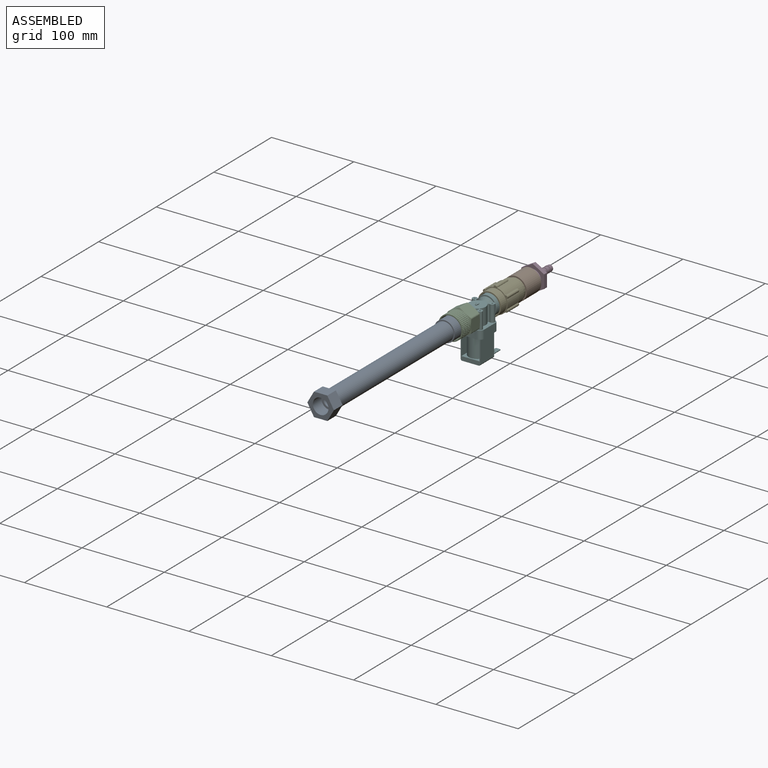
[diagram: assembled view]
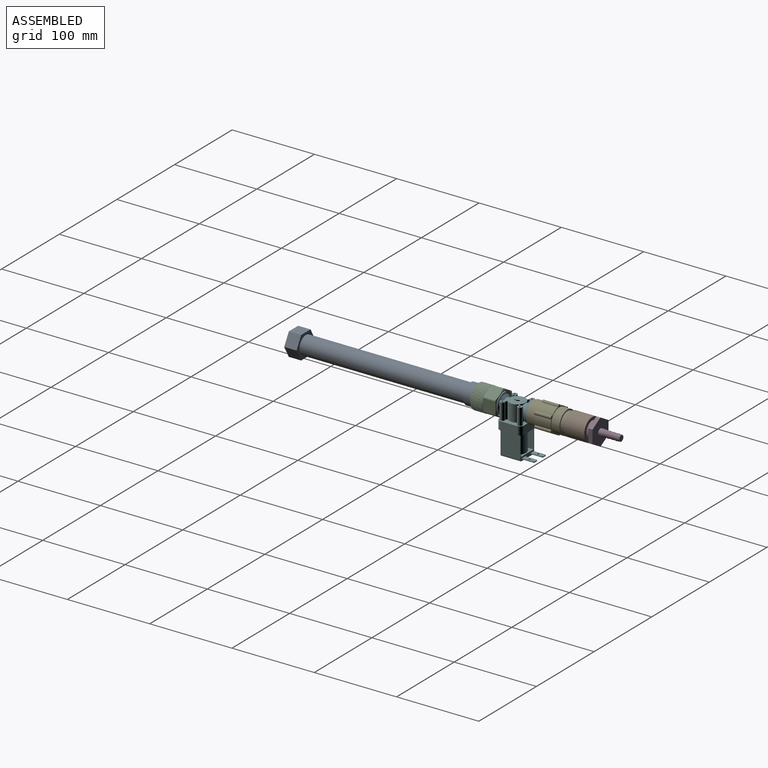
[diagram: assembled view, second angle]
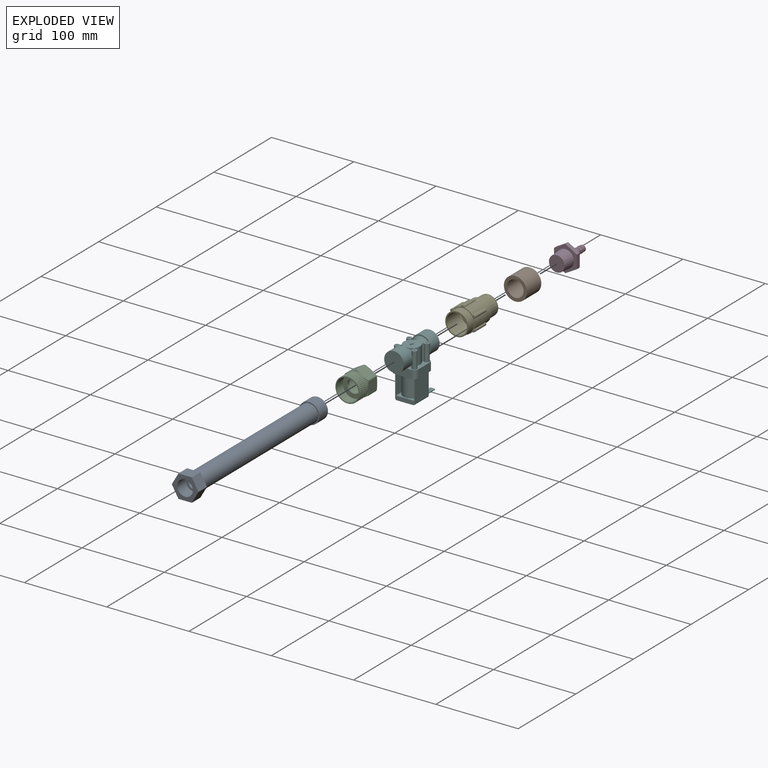
[diagram: exploded view]
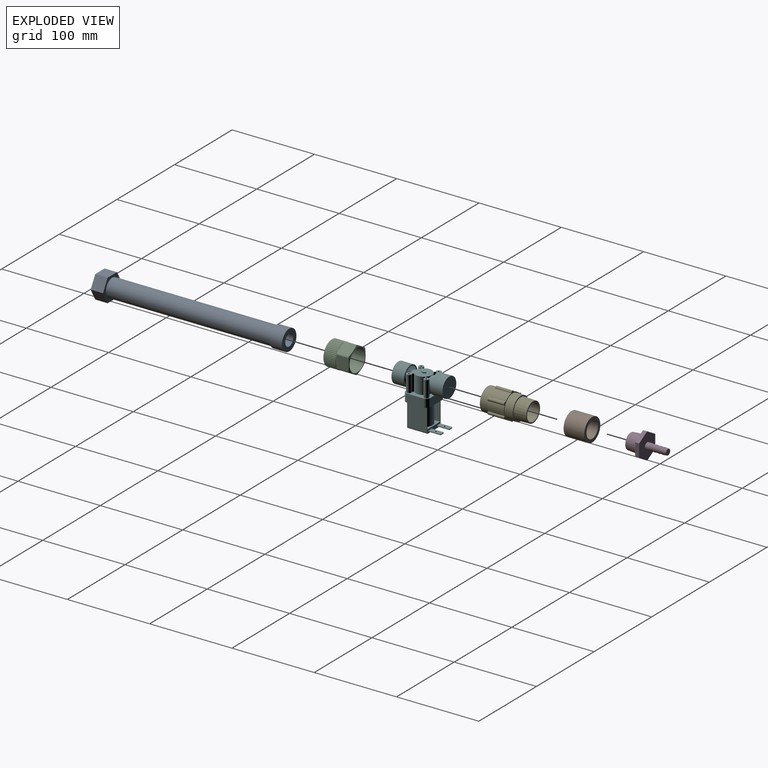
[diagram: exploded view, second angle]
ASSEMBLY  parts=6 mates=5
PART A: 15 faces, bbox 230x32.3x28 mm
  f0: plane 19x19mm, normal (-1,0,0), area 129.6mm2, adj f1,f12
  f1: cylinder r=7mm len=215mm, axis (-1,0,0), area 9456.2mm2, adj f0,f4
  f2: cylinder r=11mm len=200mm, axis (-1,0,0), area 13823mm2, adj f5,f14
  f3: cylinder r=12.5mm len=25mm, axis (-1,0,0), area 1178.1mm2, adj f4,f5
  f4: plane 25x25mm, normal (1,0,0), area 336.9mm2, adj f1,f3
  f5: plane 25x25mm, normal (-1,0,0), area 110.7mm2, adj f2,f3
  f6: plane 16.17x15mm, normal (0,0,1), area 242.5mm2, adj f7,f11,f13,f14
  f7: plane 15x14mm, normal (0,0.87,0.5), area 242.5mm2, adj f6,f8,f13,f14
  f8: plane 15x14mm, normal (0,0.87,-0.5), area 242.5mm2, adj f7,f9,f13,f14
  f9: plane 16.17x15mm, normal (0,0,-1), area 242.5mm2, adj f8,f10,f13,f14
  f10: plane 15x14mm, normal (0,-0.87,-0.5), area 242.5mm2, adj f9,f11,f13,f14
  f11: plane 15x14mm, normal (0,-0.87,0.5), area 242.5mm2, adj f6,f10,f13,f14
  f12: cylinder r=9.5mm len=19mm, axis (1,0,0), area 895.4mm2, adj f0,f13
  f13: plane 32.33x28mm, normal (-1,0,0), area 395.4mm2, adj f6,f7,f8,f9,f10,f11,f12
  f14: plane 32.33x28mm, normal (1,0,0), area 298.8mm2, adj f2,f6,f7,f8,f9,f10,f11
PART B: 4 faces, bbox 25x28x28 mm
  f0: cylinder r=10mm len=25mm, axis (-1,0,0), area 1570.8mm2, adj f2,f3
  f1: cylinder r=14mm len=28mm, axis (-1,0,0), area 2199.1mm2, adj f2,f3
  f2: plane 28x28mm, normal (1,0,0), area 301.6mm2, adj f0,f1
  f3: plane 28x28mm, normal (-1,0,0), area 301.6mm2, adj f0,f1
PART C: 223 faces, bbox 33x32.9x29.5 mm
  f0: cylinder r=14.5mm len=29mm, axis (-1,0,0), area 316.1mm2, adj f18,f19,f23,f24,f26,f27,f28,f30
  f1: cylinder r=13.5mm len=27mm, axis (1,0,0), area 933.1mm2, adj f18,f21
  f2: plane 15.7x12.5mm, normal (0,0.87,-0.5), area 221.4mm2, adj f10,f11,f16,f17
  f3: plane 15.7x12.5mm, normal (0,0.87,0.5), area 221.4mm2, adj f10,f11,f12,f17
  f4: plane 15.7x14.43mm, normal (0,0,1), area 221.4mm2, adj f10,f12,f13,f17
  f5: plane 15.7x12.5mm, normal (0,-0.87,0.5), area 221.4mm2, adj f10,f13,f14,f17
  f6: plane 15.7x12.5mm, normal (0,-0.87,-0.5), area 221.4mm2, adj f10,f14,f15,f17
  f7: cylinder r=13.5mm len=27mm, axis (1,0,0), area 1442mm2, adj f9,f22
  f8: plane 15.7x14.43mm, normal (0,0,-1), area 221.4mm2, adj f10,f15,f16,f17
  f9: plane 28x28mm, normal (-1,0,0), area 43.2mm2, adj f7,f10
  f10: sphere r=50mm, area 116.5mm2, adj f2,f3,f4,f5,f6,f8,f9,f11
  f11: cylinder r=2mm len=14.61mm, axis (1,0,0), area 30.4mm2, adj f2,f3,f10,f17
  f12: cylinder r=2mm len=14.61mm, axis (1,0,0), area 30.4mm2, adj f3,f4,f10,f17
  f13: cylinder r=2mm len=14.61mm, axis (1,0,0), area 30.4mm2, adj f4,f5,f10,f17
  f14: cylinder r=2mm len=14.61mm, axis (1,0,0), area 30.4mm2, adj f5,f6,f10,f17
  f15: cylinder r=2mm len=14.61mm, axis (1,0,0), area 30.4mm2, adj f6,f8,f10,f17
  f16: cylinder r=2mm len=14.61mm, axis (1,0,0), area 30.4mm2, adj f2,f8,f10,f17
  f17: sphere r=50mm, area 116.5mm2, adj f2,f3,f4,f5,f6,f8,f11,f12
  f18: plane 29.47x29.46mm, normal (1,0,0), area 102.6mm2, adj f0,f1,f23,f24,f25,f27,f28,f29
  f19: plane 29x29mm, normal (-1,0,0), area 44.8mm2, adj f0,f17
  f20: cylinder r=8mm len=16mm, axis (-1,0,0), area 150.8mm2, adj f21,f22
  f21: plane 27x27mm, normal (1,0,0), area 371.5mm2, adj f1,f20
  f22: plane 27x27mm, normal (-1,0,0), area 371.5mm2, adj f7,f20
  f23: plane 14x0.25mm, normal (0,0.71,0.71), area 4.9mm2, adj f0,f18,f25,f26
  f24: plane 14x0.25mm, normal (0,0.71,-0.71), area 4.9mm2, adj f0,f18,f25,f26
  f25: plane 14x1mm, normal (0,1,0), area 14mm2, adj f18,f23,f24,f26
  f26: plane 1.5x0.25mm, normal (-1,0,0), area 0.3mm2, adj f0,f23,f24,f25
  f27: plane 14x0.28mm, normal (0,0.79,0.61), area 4.9mm2, adj f0,f18,f29,f30
  f28: plane 14x0.28mm, normal (0,0.61,-0.79), area 4.9mm2, adj f0,f18,f29,f30
  f29: plane 14x0.99mm, normal (0,0.99,-0.13), area 14mm2, adj f18,f27,f28,f30
  f30: plane 1.49x0.4mm, normal (-1,0,0), area 0.3mm2, adj f0,f27,f28,f29
  f31: plane 14x0.3mm, normal (0,0.86,0.51), area 4.9mm2, adj f0,f18,f33,f34
  f32: plane 14x0.3mm, normal (0,0.51,-0.86), area 4.9mm2, adj f0,f18,f33,f34
  f33: plane 14x0.97mm, normal (0,0.97,-0.25), area 14mm2, adj f18,f31,f32,f34
  f34: plane 1.45x0.55mm, normal (-1,0,0), area 0.3mm2, adj f0,f31,f32,f33
  f35: plane 14x0.32mm, normal (0,0.92,0.4), area 4.9mm2, adj f0,f18,f37,f38
  f36: plane 14x0.32mm, normal (0,0.4,-0.92), area 4.9mm2, adj f0,f18,f37,f38
  f37: plane 14x0.93mm, normal (0,0.93,-0.37), area 14mm2, adj f18,f35,f36,f38
  f38: plane 1.39x0.69mm, normal (-1,0,0), area 0.3mm2, adj f0,f35,f36,f37
  f39: plane 14x0.34mm, normal (0,0.96,0.28), area 4.9mm2, adj f0,f18,f41,f42
  f40: plane 14x0.34mm, normal (0,0.28,-0.96), area 4.9mm2, adj f0,f18,f41,f42
  f41: plane 14x0.88mm, normal (0,0.88,-0.48), area 14mm2, adj f18,f39,f40,f42
  f42: plane 1.31x0.82mm, normal (-1,0,0), area 0.3mm2, adj f0,f39,f40,f41
  f43: plane 14x0.35mm, normal (0,0.99,0.16), area 4.9mm2, adj f0,f18,f45,f46
  f44: plane 14x0.35mm, normal (0,0.16,-0.99), area 4.9mm2, adj f0,f18,f45,f46
  f45: plane 14x0.81mm, normal (0,0.81,-0.59), area 14mm2, adj f18,f43,f44,f46
  f46: plane 1.21x0.94mm, normal (-1,0,0), area 0.3mm2, adj f0,f43,f44,f45
  f47: plane 14x0.35mm, normal (0,1,0.03), area 4.9mm2, adj f0,f18,f49,f50
  f48: plane 14x0.35mm, normal (0,0.03,-1), area 4.9mm2, adj f0,f18,f49,f50
  f49: plane 14x0.73mm, normal (0,0.73,-0.68), area 14mm2, adj f18,f47,f48,f50
  f50: plane 1.09x1.04mm, normal (-1,0,0), area 0.3mm2, adj f0,f47,f48,f49
  f51: plane 14x0.35mm, normal (0,1,-0.09), area 4.9mm2, adj f0,f18,f53,f54
  f52: plane 14x0.35mm, normal (0,-0.09,-1), area 4.9mm2, adj f0,f18,f53,f54
  f53: plane 14x0.77mm, normal (0,0.64,-0.77), area 14mm2, adj f18,f51,f52,f54
  f54: plane 1.16x0.99mm, normal (-1,0,0), area 0.3mm2, adj f0,f51,f52,f53
  f55: plane 14x0.35mm, normal (0,0.98,-0.22), area 4.9mm2, adj f0,f18,f57,f58
  f56: plane 14x0.35mm, normal (0,-0.22,-0.98), area 4.9mm2, adj f0,f18,f57,f58
  f57: plane 14x0.84mm, normal (0,0.54,-0.84), area 14mm2, adj f18,f55,f56,f58
  f58: plane 1.27x0.88mm, normal (-1,0,0), area 0.3mm2, adj f0,f55,f56,f57
  f59: plane 14x0.33mm, normal (0,0.94,-0.34), area 4.9mm2, adj f0,f18,f61,f62
  f60: plane 14x0.33mm, normal (0,-0.34,-0.94), area 4.9mm2, adj f0,f18,f61,f62
  f61: plane 14x0.91mm, normal (0,0.43,-0.9), area 14mm2, adj f18,f59,f60,f62
  f62: plane 1.36x0.76mm, normal (-1,0,0), area 0.3mm2, adj f0,f59,f60,f61
  f63: plane 14x0.32mm, normal (0,0.89,-0.45), area 4.9mm2, adj f0,f18,f65,f66
  f64: plane 14x0.32mm, normal (0,-0.45,-0.89), area 4.9mm2, adj f0,f18,f65,f66
  f65: plane 14x0.95mm, normal (0,0.31,-0.95), area 14mm2, adj f18,f63,f64,f66
  f66: plane 1.43x0.62mm, normal (-1,0,0), area 0.3mm2, adj f0,f63,f64,f65
  f67: plane 14x0.29mm, normal (0,0.83,-0.56), area 4.9mm2, adj f0,f18,f69,f70
  f68: plane 14x0.29mm, normal (0,-0.56,-0.83), area 4.9mm2, adj f0,f18,f69,f70
  f69: plane 14x0.98mm, normal (0,0.19,-0.98), area 14mm2, adj f18,f67,f68,f70
  f70: plane 1.47x0.48mm, normal (-1,0,0), area 0.3mm2, adj f0,f67,f68,f69
  f71: plane 14x0.27mm, normal (0,0.75,-0.66), area 4.9mm2, adj f0,f18,f73,f74
  f72: plane 14x0.27mm, normal (0,-0.66,-0.75), area 4.9mm2, adj f0,f18,f73,f74
  f73: plane 14x1mm, normal (0,0.06,-1), area 14mm2, adj f18,f71,f72,f74
  f74: plane 1.5x0.33mm, normal (-1,0,0), area 0.3mm2, adj f0,f71,f72,f73
  f75: plane 14x0.27mm, normal (0,0.66,-0.75), area 4.9mm2, adj f0,f18,f77,f78
  f76: plane 14x0.27mm, normal (0,-0.75,-0.66), area 4.9mm2, adj f0,f18,f77,f78
  f77: plane 14x1mm, normal (0,-0.06,-1), area 14mm2, adj f18,f75,f76,f78
  f78: plane 1.5x0.33mm, normal (-1,0,0), area 0.3mm2, adj f0,f75,f76,f77
  f79: plane 14x0.29mm, normal (0,0.56,-0.83), area 4.9mm2, adj f0,f18,f81,f82
  f80: plane 14x0.29mm, normal (0,-0.83,-0.56), area 4.9mm2, adj f0,f18,f81,f82
  f81: plane 14x0.98mm, normal (0,-0.19,-0.98), area 14mm2, adj f18,f79,f80,f82
  f82: plane 1.47x0.48mm, normal (-1,0,0), area 0.3mm2, adj f0,f79,f80,f81
  f83: plane 14x0.32mm, normal (0,0.45,-0.89), area 4.9mm2, adj f0,f18,f85,f86
  f84: plane 14x0.32mm, normal (0,-0.89,-0.45), area 4.9mm2, adj f0,f18,f85,f86
  f85: plane 14x0.95mm, normal (0,-0.31,-0.95), area 14mm2, adj f18,f83,f84,f86
  f86: plane 1.43x0.62mm, normal (-1,0,0), area 0.3mm2, adj f0,f83,f84,f85
  f87: plane 14x0.33mm, normal (0,0.34,-0.94), area 4.9mm2, adj f0,f18,f89,f90
  f88: plane 14x0.33mm, normal (0,-0.94,-0.34), area 4.9mm2, adj f0,f18,f89,f90
  f89: plane 14x0.91mm, normal (0,-0.43,-0.9), area 14mm2, adj f18,f87,f88,f90
  f90: plane 1.36x0.76mm, normal (-1,0,0), area 0.3mm2, adj f0,f87,f88,f89
  f91: plane 14x0.35mm, normal (0,0.22,-0.98), area 4.9mm2, adj f0,f18,f93,f94
  f92: plane 14x0.35mm, normal (0,-0.98,-0.22), area 4.9mm2, adj f0,f18,f93,f94
  f93: plane 14x0.84mm, normal (0,-0.54,-0.84), area 14mm2, adj f18,f91,f92,f94
  f94: plane 1.27x0.88mm, normal (-1,0,0), area 0.3mm2, adj f0,f91,f92,f93
  f95: plane 14x0.35mm, normal (0,0.09,-1), area 4.9mm2, adj f0,f18,f97,f98
  f96: plane 14x0.35mm, normal (0,-1,-0.09), area 4.9mm2, adj f0,f18,f97,f98
  f97: plane 14x0.77mm, normal (0,-0.64,-0.77), area 14mm2, adj f18,f95,f96,f98
  f98: plane 1.16x0.99mm, normal (-1,0,0), area 0.3mm2, adj f0,f95,f96,f97
  f99: plane 14x0.35mm, normal (0,-0.03,-1), area 4.9mm2, adj f0,f18,f101,f102
  f100: plane 14x0.35mm, normal (0,-1,0.03), area 4.9mm2, adj f0,f18,f101,f102
  f101: plane 14x0.73mm, normal (0,-0.73,-0.68), area 14mm2, adj f18,f99,f100,f102
  f102: plane 1.09x1.04mm, normal (-1,0,0), area 0.3mm2, adj f0,f99,f100,f101
  f103: plane 14x0.35mm, normal (0,-0.16,-0.99), area 4.9mm2, adj f0,f18,f105,f106
  f104: plane 14x0.35mm, normal (0,-0.99,0.16), area 4.9mm2, adj f0,f18,f105,f106
  f105: plane 14x0.81mm, normal (0,-0.81,-0.59), area 14mm2, adj f18,f103,f104,f106
  f106: plane 1.21x0.94mm, normal (-1,0,0), area 0.3mm2, adj f0,f103,f104,f105
  f107: plane 14x0.34mm, normal (0,-0.28,-0.96), area 4.9mm2, adj f0,f18,f109,f110
  f108: plane 14x0.34mm, normal (0,-0.96,0.28), area 4.9mm2, adj f0,f18,f109,f110
  f109: plane 14x0.88mm, normal (0,-0.88,-0.48), area 14mm2, adj f18,f107,f108,f110
  f110: plane 1.31x0.82mm, normal (-1,0,0), area 0.3mm2, adj f0,f107,f108,f109
  f111: plane 14x0.32mm, normal (0,-0.4,-0.92), area 4.9mm2, adj f0,f18,f113,f114
  f112: plane 14x0.32mm, normal (0,-0.92,0.4), area 4.9mm2, adj f0,f18,f113,f114
  f113: plane 14x0.93mm, normal (0,-0.93,-0.37), area 14mm2, adj f18,f111,f112,f114
  f114: plane 1.39x0.69mm, normal (-1,0,0), area 0.3mm2, adj f0,f111,f112,f113
  f115: plane 14x0.3mm, normal (0,-0.51,-0.86), area 4.9mm2, adj f0,f18,f117,f118
  f116: plane 14x0.3mm, normal (0,-0.86,0.51), area 4.9mm2, adj f0,f18,f117,f118
  f117: plane 14x0.97mm, normal (0,-0.97,-0.25), area 14mm2, adj f18,f115,f116,f118
  f118: plane 1.45x0.55mm, normal (-1,0,0), area 0.3mm2, adj f0,f115,f116,f117
  f119: plane 14x0.28mm, normal (0,-0.61,-0.79), area 4.9mm2, adj f0,f18,f121,f122
  f120: plane 14x0.28mm, normal (0,-0.79,0.61), area 4.9mm2, adj f0,f18,f121,f122
  f121: plane 14x0.99mm, normal (0,-0.99,-0.13), area 14mm2, adj f18,f119,f120,f122
  f122: plane 1.49x0.4mm, normal (-1,0,0), area 0.3mm2, adj f0,f119,f120,f121
  f123: plane 14x0.25mm, normal (0,-0.71,-0.71), area 4.9mm2, adj f0,f18,f125,f126
  f124: plane 14x0.25mm, normal (0,-0.71,0.71), area 4.9mm2, adj f0,f18,f125,f126
  f125: plane 14x1mm, normal (0,-1,0), area 14mm2, adj f18,f123,f124,f126
  f126: plane 1.5x0.25mm, normal (-1,0,0), area 0.3mm2, adj f0,f123,f124,f125
  f127: plane 14x0.28mm, normal (0,-0.79,-0.61), area 4.9mm2, adj f0,f18,f129,f130
  f128: plane 14x0.28mm, normal (0,-0.61,0.79), area 4.9mm2, adj f0,f18,f129,f130
  f129: plane 14x0.99mm, normal (0,-0.99,0.13), area 14mm2, adj f18,f127,f128,f130
  f130: plane 1.49x0.4mm, normal (-1,0,0), area 0.3mm2, adj f0,f127,f128,f129
  f131: plane 14x0.3mm, normal (0,-0.86,-0.51), area 4.9mm2, adj f0,f18,f133,f134
  f132: plane 14x0.3mm, normal (0,-0.51,0.86), area 4.9mm2, adj f0,f18,f133,f134
  f133: plane 14x0.97mm, normal (0,-0.97,0.25), area 14mm2, adj f18,f131,f132,f134
  f134: plane 1.45x0.55mm, normal (-1,0,0), area 0.3mm2, adj f0,f131,f132,f133
  f135: plane 14x0.32mm, normal (0,-0.92,-0.4), area 4.9mm2, adj f0,f18,f137,f138
  f136: plane 14x0.32mm, normal (0,-0.4,0.92), area 4.9mm2, adj f0,f18,f137,f138
  f137: plane 14x0.93mm, normal (0,-0.93,0.37), area 14mm2, adj f18,f135,f136,f138
  f138: plane 1.39x0.69mm, normal (-1,0,0), area 0.3mm2, adj f0,f135,f136,f137
  f139: plane 14x0.34mm, normal (0,-0.96,-0.28), area 4.9mm2, adj f0,f18,f141,f142
  f140: plane 14x0.34mm, normal (0,-0.28,0.96), area 4.9mm2, adj f0,f18,f141,f142
  f141: plane 14x0.88mm, normal (0,-0.88,0.48), area 14mm2, adj f18,f139,f140,f142
  f142: plane 1.31x0.82mm, normal (-1,0,0), area 0.3mm2, adj f0,f139,f140,f141
  f143: plane 14x0.35mm, normal (0,-0.99,-0.16), area 4.9mm2, adj f0,f18,f145,f146
  f144: plane 14x0.35mm, normal (0,-0.16,0.99), area 4.9mm2, adj f0,f18,f145,f146
  f145: plane 14x0.81mm, normal (0,-0.81,0.59), area 14mm2, adj f18,f143,f144,f146
  f146: plane 1.21x0.94mm, normal (-1,0,0), area 0.3mm2, adj f0,f143,f144,f145
  f147: plane 14x0.35mm, normal (0,-1,-0.03), area 4.9mm2, adj f0,f18,f149,f150
  f148: plane 14x0.35mm, normal (0,-0.03,1), area 4.9mm2, adj f0,f18,f149,f150
  f149: plane 14x0.73mm, normal (0,-0.73,0.68), area 14mm2, adj f18,f147,f148,f150
  f150: plane 1.09x1.04mm, normal (-1,0,0), area 0.3mm2, adj f0,f147,f148,f149
  f151: plane 14x0.35mm, normal (0,-1,0.09), area 4.9mm2, adj f0,f18,f153,f154
  f152: plane 14x0.35mm, normal (0,0.09,1), area 4.9mm2, adj f0,f18,f153,f154
  f153: plane 14x0.77mm, normal (0,-0.64,0.77), area 14mm2, adj f18,f151,f152,f154
  f154: plane 1.16x0.99mm, normal (-1,0,0), area 0.3mm2, adj f0,f151,f152,f153
  f155: plane 14x0.35mm, normal (0,-0.98,0.22), area 4.9mm2, adj f0,f18,f157,f158
  f156: plane 14x0.35mm, normal (0,0.22,0.98), area 4.9mm2, adj f0,f18,f157,f158
  f157: plane 14x0.84mm, normal (0,-0.54,0.84), area 14mm2, adj f18,f155,f156,f158
  f158: plane 1.27x0.88mm, normal (-1,0,0), area 0.3mm2, adj f0,f155,f156,f157
  f159: plane 14x0.33mm, normal (0,-0.94,0.34), area 4.9mm2, adj f0,f18,f161,f162
  f160: plane 14x0.33mm, normal (0,0.34,0.94), area 4.9mm2, adj f0,f18,f161,f162
  f161: plane 14x0.91mm, normal (0,-0.43,0.9), area 14mm2, adj f18,f159,f160,f162
  f162: plane 1.36x0.76mm, normal (-1,0,0), area 0.3mm2, adj f0,f159,f160,f161
  f163: plane 14x0.32mm, normal (0,-0.89,0.45), area 4.9mm2, adj f0,f18,f165,f166
  f164: plane 14x0.32mm, normal (0,0.45,0.89), area 4.9mm2, adj f0,f18,f165,f166
  f165: plane 14x0.95mm, normal (0,-0.31,0.95), area 14mm2, adj f18,f163,f164,f166
  f166: plane 1.43x0.62mm, normal (-1,0,0), area 0.3mm2, adj f0,f163,f164,f165
  f167: plane 14x0.29mm, normal (0,-0.83,0.56), area 4.9mm2, adj f0,f18,f169,f170
  f168: plane 14x0.29mm, normal (0,0.56,0.83), area 4.9mm2, adj f0,f18,f169,f170
  f169: plane 14x0.98mm, normal (0,-0.19,0.98), area 14mm2, adj f18,f167,f168,f170
  f170: plane 1.47x0.48mm, normal (-1,0,0), area 0.3mm2, adj f0,f167,f168,f169
  f171: plane 14x0.27mm, normal (0,-0.75,0.66), area 4.9mm2, adj f0,f18,f173,f174
  f172: plane 14x0.27mm, normal (0,0.66,0.75), area 4.9mm2, adj f0,f18,f173,f174
  f173: plane 14x1mm, normal (0,-0.06,1), area 14mm2, adj f18,f171,f172,f174
  f174: plane 1.5x0.33mm, normal (-1,0,0), area 0.3mm2, adj f0,f171,f172,f173
  f175: plane 14x0.27mm, normal (0,-0.66,0.75), area 4.9mm2, adj f0,f18,f177,f178
  f176: plane 14x0.27mm, normal (0,0.75,0.66), area 4.9mm2, adj f0,f18,f177,f178
  f177: plane 14x1mm, normal (0,0.06,1), area 14mm2, adj f18,f175,f176,f178
  f178: plane 1.5x0.33mm, normal (-1,0,0), area 0.3mm2, adj f0,f175,f176,f177
  f179: plane 14x0.29mm, normal (0,-0.56,0.83), area 4.9mm2, adj f0,f18,f181,f182
  f180: plane 14x0.29mm, normal (0,0.83,0.56), area 4.9mm2, adj f0,f18,f181,f182
  f181: plane 14x0.98mm, normal (0,0.19,0.98), area 14mm2, adj f18,f179,f180,f182
  f182: plane 1.47x0.48mm, normal (-1,0,0), area 0.3mm2, adj f0,f179,f180,f181
  f183: plane 14x0.32mm, normal (0,-0.45,0.89), area 4.9mm2, adj f0,f18,f185,f186
  f184: plane 14x0.32mm, normal (0,0.89,0.45), area 4.9mm2, adj f0,f18,f185,f186
  f185: plane 14x0.95mm, normal (0,0.31,0.95), area 14mm2, adj f18,f183,f184,f186
  f186: plane 1.43x0.62mm, normal (-1,0,0), area 0.3mm2, adj f0,f183,f184,f185
  f187: plane 14x0.33mm, normal (0,-0.34,0.94), area 4.9mm2, adj f0,f18,f189,f190
  f188: plane 14x0.33mm, normal (0,0.94,0.34), area 4.9mm2, adj f0,f18,f189,f190
  f189: plane 14x0.91mm, normal (0,0.43,0.9), area 14mm2, adj f18,f187,f188,f190
  f190: plane 1.36x0.76mm, normal (-1,0,0), area 0.3mm2, adj f0,f187,f188,f189
  f191: plane 14x0.35mm, normal (0,-0.22,0.98), area 4.9mm2, adj f0,f18,f193,f194
  f192: plane 14x0.35mm, normal (0,0.98,0.22), area 4.9mm2, adj f0,f18,f193,f194
  f193: plane 14x0.84mm, normal (0,0.54,0.84), area 14mm2, adj f18,f191,f192,f194
  f194: plane 1.27x0.88mm, normal (-1,0,0), area 0.3mm2, adj f0,f191,f192,f193
  f195: plane 14x0.35mm, normal (0,-0.09,1), area 4.9mm2, adj f0,f18,f197,f198
  f196: plane 14x0.35mm, normal (0,1,0.09), area 4.9mm2, adj f0,f18,f197,f198
  f197: plane 14x0.77mm, normal (0,0.64,0.77), area 14mm2, adj f18,f195,f196,f198
  f198: plane 1.16x0.99mm, normal (-1,0,0), area 0.3mm2, adj f0,f195,f196,f197
  f199: plane 14x0.35mm, normal (0,0.03,1), area 4.9mm2, adj f0,f18,f201,f202
  f200: plane 14x0.35mm, normal (0,1,-0.03), area 4.9mm2, adj f0,f18,f201,f202
  f201: plane 14x0.73mm, normal (0,0.73,0.68), area 14mm2, adj f18,f199,f200,f202
  f202: plane 1.09x1.04mm, normal (-1,0,0), area 0.3mm2, adj f0,f199,f200,f201
  f203: plane 14x0.35mm, normal (0,0.16,0.99), area 4.9mm2, adj f0,f18,f205,f206
  f204: plane 14x0.35mm, normal (0,0.99,-0.16), area 4.9mm2, adj f0,f18,f205,f206
  f205: plane 14x0.81mm, normal (0,0.81,0.59), area 14mm2, adj f18,f203,f204,f206
  f206: plane 1.21x0.94mm, normal (-1,0,0), area 0.3mm2, adj f0,f203,f204,f205
  f207: plane 14x0.34mm, normal (0,0.28,0.96), area 4.9mm2, adj f0,f18,f209,f210
  f208: plane 14x0.34mm, normal (0,0.96,-0.28), area 4.9mm2, adj f0,f18,f209,f210
  f209: plane 14x0.88mm, normal (0,0.88,0.48), area 14mm2, adj f18,f207,f208,f210
  f210: plane 1.31x0.82mm, normal (-1,0,0), area 0.3mm2, adj f0,f207,f208,f209
  f211: plane 14x0.32mm, normal (0,0.4,0.92), area 4.9mm2, adj f0,f18,f213,f214
  f212: plane 14x0.32mm, normal (0,0.92,-0.4), area 4.9mm2, adj f0,f18,f213,f214
  f213: plane 14x0.93mm, normal (0,0.93,0.37), area 14mm2, adj f18,f211,f212,f214
  f214: plane 1.39x0.69mm, normal (-1,0,0), area 0.3mm2, adj f0,f211,f212,f213
  f215: plane 14x0.3mm, normal (0,0.51,0.86), area 4.9mm2, adj f0,f18,f217,f218
  f216: plane 14x0.3mm, normal (0,0.86,-0.51), area 4.9mm2, adj f0,f18,f217,f218
  f217: plane 14x0.97mm, normal (0,0.97,0.25), area 14mm2, adj f18,f215,f216,f218
  f218: plane 1.45x0.55mm, normal (-1,0,0), area 0.3mm2, adj f0,f215,f216,f217
  f219: plane 14x0.28mm, normal (0,0.61,0.79), area 4.9mm2, adj f0,f18,f221,f222
  f220: plane 14x0.28mm, normal (0,0.79,-0.61), area 4.9mm2, adj f0,f18,f221,f222
  f221: plane 14x0.99mm, normal (0,0.99,0.13), area 14mm2, adj f18,f219,f220,f222
  f222: plane 1.49x0.4mm, normal (-1,0,0), area 0.3mm2, adj f0,f219,f220,f221
PART D: 19 faces, bbox 45.3x27.8x32.1 mm
  f0: plane 19.05x19.05mm, normal (-1,0,0), area 285mm2, adj f18
  f1: plane 13.91x8.03mm, normal (0,-0.5,0.87), area 80.3mm2, adj f2,f6,f7,f8
  f2: plane 16.06x5mm, normal (0,-1,0), area 80.3mm2, adj f1,f3,f7,f8
  f3: plane 13.91x8.03mm, normal (0,-0.5,-0.87), area 80.3mm2, adj f2,f4,f7,f8
  f4: plane 13.91x8.03mm, normal (0,0.5,-0.87), area 80.3mm2, adj f3,f5,f7,f8
  f5: plane 16.06x5mm, normal (0,1,0), area 80.3mm2, adj f4,f6,f7,f8
  f6: plane 13.91x8.03mm, normal (0,0.5,0.87), area 80.3mm2, adj f1,f5,f7,f8
  f7: plane 32.12x27.81mm, normal (1,0,0), area 617.1mm2, adj f1,f2,f3,f4,f5,f6,f10
  f8: plane 32.12x27.81mm, normal (-1,0,0), area 321.9mm2, adj f1,f2,f3,f4,f5,f6,f18
  f9: cone r=3.6mm half-angle=5.7deg, axis (-1,0,0), area 121.6mm2, adj f10,f17
  f10: cylinder r=4.1mm len=8.2mm, axis (-1,0,0), area 137.6mm2, adj f7,f9
  f11: plane 7.2x7.2mm, normal (1,0,0), area 40.8mm2, adj f12
  f12: cone r=3.6mm half-angle=5.7deg, axis (-1,0,0), area 121.6mm2, adj f11,f13
  f13: plane 8.2x8.2mm, normal (-1,0,0), area 12.1mm2, adj f12,f14
  f14: cone r=3.6mm half-angle=5.7deg, axis (-1,0,0), area 121.6mm2, adj f13,f15
  f15: plane 8.2x8.2mm, normal (-1,0,0), area 12.1mm2, adj f14,f16
  f16: cone r=3.6mm half-angle=5.7deg, axis (-1,0,0), area 121.6mm2, adj f15,f17
  f17: plane 8.2x8.2mm, normal (-1,0,0), area 12.1mm2, adj f9,f16
  f18: cone r=10.53mm half-angle=3.8deg, axis (1,0,0), area 946.9mm2, adj f0,f8
PART E: 24 faces, bbox 55x30x34 mm
  f0: cylinder r=10mm len=20mm, axis (-1,0,0), area 942.5mm2, adj f19,f23
  f1: cylinder r=2mm len=20mm, axis (-1,0,0), area 131mm2, adj f2,f12,f13,f14
  f2: cylinder r=15mm len=20mm, axis (-1,0,0), area 234.1mm2, adj f1,f3,f13,f14
  f3: cylinder r=2mm len=20mm, axis (-1,0,0), area 131mm2, adj f2,f4,f13,f14
  f4: cylinder r=15mm len=20mm, axis (-1,0,0), area 234.1mm2, adj f3,f5,f13,f14
  f5: cylinder r=2mm len=20mm, axis (-1,0,0), area 131mm2, adj f4,f6,f13,f14
  f6: cylinder r=15mm len=20mm, axis (-1,0,0), area 234.1mm2, adj f5,f7,f13,f14
  f7: cylinder r=2mm len=20mm, axis (-1,0,0), area 131mm2, adj f6,f8,f13,f14
  f8: cylinder r=15mm len=20mm, axis (-1,0,0), area 234.1mm2, adj f7,f9,f13,f14
  f9: cylinder r=2mm len=20mm, axis (-1,0,0), area 131mm2, adj f8,f10,f13,f14
  f10: cylinder r=15mm len=20mm, axis (-1,0,0), area 234.1mm2, adj f9,f11,f13,f14
  f11: cylinder r=2mm len=20mm, axis (-1,0,0), area 131mm2, adj f10,f12,f13,f14
  f12: cylinder r=15mm len=20mm, axis (-1,0,0), area 234.1mm2, adj f1,f11,f13,f14
  f13: plane 34x30mm, normal (1,0,0), area 129.9mm2, adj f1,f2,f3,f4,f5,f6,f7,f8
  f14: plane 34x30mm, normal (-1,0,0), area 129.9mm2, adj f1,f2,f3,f4,f5,f6,f7,f8
  f15: plane 28x28mm, normal (-1,0,0), area 124.9mm2, adj f16,f20
  f16: cylinder r=14mm len=28mm, axis (-1,0,0), area 879.6mm2, adj f14,f15
  f17: cylinder r=14mm len=28mm, axis (-1,0,0), area 879.6mm2, adj f13,f18
  f18: plane 28x28mm, normal (1,0,0), area 124.9mm2, adj f17,f22
  f19: cone r=10mm half-angle=2deg, axis (-1,0,0), area 967.8mm2, adj f0,f21
  f20: cone r=12.5mm half-angle=2deg, axis (1,0,0), area 1154.1mm2, adj f15,f21
  f21: plane 23.95x23.95mm, normal (-1,0,0), area 102.7mm2, adj f19,f20
  f22: cylinder r=12.5mm len=25mm, axis (1,0,0), area 1963.5mm2, adj f18,f23
  f23: plane 25x25mm, normal (1,0,0), area 176.7mm2, adj f0,f22
PART F: 86 faces, bbox 30x62x64 mm
  f0: plane 24x22mm, normal (0,0,1), area 181.6mm2, adj f1,f49,f52,f74,f75
  f1: plane 30x24mm, normal (0,-1,0), area 156.3mm2, adj f0,f9,f50,f51,f53,f58,f59,f60
  f2: cylinder r=10mm len=13.42mm, axis (0,0,-1), area 26.2mm2, adj f20,f22,f30,f43
  f3: cylinder r=10mm len=13.42mm, axis (0,0,-1), area 26.2mm2, adj f12,f14,f30,f37
  f4: plane 30x30mm, normal (0,0,1), area 443.2mm2, adj f5,f6,f7,f8,f10,f11,f12,f13
  f5: plane 20x10mm, normal (1,0,0), area 200mm2, adj f4,f9,f54,f57
  f6: plane 20x10mm, normal (0,1,0), area 200mm2, adj f4,f9,f54,f55
  f7: plane 20x10mm, normal (-1,0,0), area 200mm2, adj f4,f9,f55,f56
  f8: plane 20x10mm, normal (0,-1,0), area 200mm2, adj f4,f9,f56,f57
  f9: plane 30x30mm, normal (0,0,-1), area 484.2mm2, adj f1,f5,f6,f7,f8,f49,f50,f51
  f10: plane 20x1.45mm, normal (0.71,-0.71,0), area 40.9mm2, adj f4,f11,f28,f30,f35
  f11: cylinder r=3mm len=20mm, axis (0,0,-1), area 356.9mm2, adj f4,f10,f12,f30
  f12: plane 20x1.45mm, normal (-0.71,0.71,0), area 36mm2, adj f3,f4,f11,f13,f30,f37
  f13: cylinder r=10mm len=13.42mm, axis (0,0,-1), area 85mm2, adj f4,f12,f14,f37
  f14: plane 20x1.45mm, normal (0.71,0.71,0), area 36mm2, adj f3,f4,f13,f15,f30,f37
  f15: cylinder r=3mm len=20mm, axis (0,0,-1), area 356.9mm2, adj f4,f14,f16,f30
  f16: plane 20x1.45mm, normal (-0.71,-0.71,0), area 40.9mm2, adj f4,f15,f17,f30,f36
  f17: cylinder r=10mm len=20mm, axis (0,0,-1), area 293.8mm2, adj f4,f16,f18,f30,f36,f44
  f18: plane 20x1.45mm, normal (-0.71,0.71,0), area 40.9mm2, adj f4,f17,f19,f30,f44
  f19: cylinder r=3mm len=20mm, axis (0,0,-1), area 356.9mm2, adj f4,f18,f20,f30
  f20: plane 20x1.45mm, normal (0.71,-0.71,0), area 36mm2, adj f2,f4,f19,f21,f30,f43
  f21: cylinder r=10mm len=13.42mm, axis (0,0,-1), area 85mm2, adj f4,f20,f22,f43
  f22: plane 20x1.45mm, normal (-0.71,-0.71,0), area 36mm2, adj f2,f4,f21,f23,f30,f43
  f23: cylinder r=3mm len=20mm, axis (0,0,-1), area 356.9mm2, adj f4,f22,f24,f30
  f24: plane 20x1.45mm, normal (0.71,0.71,0), area 40.9mm2, adj f4,f23,f28,f30,f42
  f25: cylinder r=1mm len=20mm, axis (0,0,-1), area 125.7mm2, adj f30,f31
  f26: cylinder r=1mm len=20mm, axis (0,0,-1), area 125.7mm2, adj f30,f32
  f27: cylinder r=1mm len=20mm, axis (0,0,-1), area 125.7mm2, adj f30,f33
  f28: cylinder r=10mm len=20mm, axis (0,0,-1), area 293.8mm2, adj f4,f10,f24,f30,f35,f42
  f29: cylinder r=1mm len=20mm, axis (0,0,-1), area 125.7mm2, adj f30,f34
  f30: plane 27.21x27.21mm, normal (0,0,1), area 410.8mm2, adj f2,f3,f10,f11,f12,f14,f15,f16
  f31: plane 2x2mm, normal (0,0,1), area 3.1mm2, adj f25
  f32: plane 2x2mm, normal (0,0,1), area 3.1mm2, adj f26
  f33: plane 2x2mm, normal (0,0,1), area 3.1mm2, adj f27
  f34: plane 2x2mm, normal (0,0,1), area 3.1mm2, adj f29
  f35: cylinder r=7.5mm len=2.24mm, axis (0,-1,0), area 0.3mm2, adj f10,f28
  f36: cylinder r=7.5mm len=2.24mm, axis (0,-1,0), area 0.3mm2, adj f16,f17
  f37: cylinder r=7.5mm len=15mm, axis (0,-1,0), area 202.5mm2, adj f3,f12,f13,f14,f41
  f38: cylinder r=12mm len=24mm, axis (0,-1,0), area 1131mm2, adj f39,f40
  f39: plane 24x24mm, normal (0,1,0), area 452.4mm2, adj f38
  f40: plane 24x24mm, normal (0,-1,0), area 106mm2, adj f38,f41
  f41: cone r=7.5mm half-angle=45deg, axis (0,1,0), area 239.9mm2, adj f37,f40
  f42: cylinder r=7.5mm len=2.24mm, axis (0,1,0), area 0.3mm2, adj f24,f28
  f43: cylinder r=7.5mm len=15mm, axis (0,1,0), area 202.5mm2, adj f2,f20,f21,f22,f48
  f44: cylinder r=7.5mm len=2.24mm, axis (0,1,0), area 0.3mm2, adj f17,f18
  f45: cylinder r=12mm len=24mm, axis (0,1,0), area 1131mm2, adj f46,f47
  f46: plane 24x24mm, normal (0,-1,0), area 452.4mm2, adj f45
  f47: plane 24x24mm, normal (0,1,0), area 106mm2, adj f45,f48
  f48: cone r=7.5mm half-angle=45deg, axis (0,-1,0), area 239.9mm2, adj f43,f47
  f49: cylinder r=10.5mm len=25mm, axis (0,0,1), area 1649.3mm2, adj f0,f9
  f50: plane 28x24mm, normal (1,0,0), area 672mm2, adj f1,f9,f52,f77
  f51: plane 28x24mm, normal (-1,0,0), area 672mm2, adj f1,f9,f52,f76
  f52: plane 30x24mm, normal (0,1,0), area 168.3mm2, adj f0,f9,f50,f51,f53,f74,f75,f76
  f53: plane 24x20mm, normal (0,0,-1), area 480mm2, adj f1,f52,f76,f77
  f54: cylinder r=5mm len=10mm, axis (0,0,-1), area 78.5mm2, adj f4,f5,f6,f9
  f55: cylinder r=5mm len=10mm, axis (0,0,1), area 78.5mm2, adj f4,f6,f7,f9
  f56: cylinder r=5mm len=10mm, axis (0,0,-1), area 78.5mm2, adj f4,f7,f8,f9
  f57: cylinder r=5mm len=10mm, axis (0,0,1), area 78.5mm2, adj f4,f5,f8,f9
  f58: plane 14x1mm, normal (-1,0,0), area 14mm2, adj f1,f59,f61,f65
  f59: plane 15x6mm, normal (0,0,-1), area 86.4mm2, adj f1,f58,f60,f62,f63,f64,f65
  f60: plane 14x1mm, normal (1,0,0), area 14mm2, adj f1,f59,f61,f64
  f61: plane 15x6mm, normal (0,0,1), area 86.4mm2, adj f1,f58,f60,f62,f63,f64,f65
  f62: plane 4x1mm, normal (0,-1,0), area 4mm2, adj f59,f61,f64,f65
  f63: cylinder r=1mm len=2mm, axis (0,0,1), area 6.3mm2, adj f59,f61
  f64: cylinder r=1mm len=1mm, axis (0,0,-1), area 1.6mm2, adj f59,f60,f61,f62
  f65: cylinder r=1mm len=1mm, axis (0,0,1), area 1.6mm2, adj f58,f59,f61,f62
  f66: plane 14x1mm, normal (-1,0,0), area 14mm2, adj f1,f67,f69,f73
  f67: plane 15x6mm, normal (0,0,-1), area 86.4mm2, adj f1,f66,f68,f70,f71,f72,f73
  f68: plane 14x1mm, normal (1,0,0), area 14mm2, adj f1,f67,f69,f72
  f69: plane 15x6mm, normal (0,0,1), area 86.4mm2, adj f1,f66,f68,f70,f71,f72,f73
  f70: plane 4x1mm, normal (0,-1,0), area 4mm2, adj f67,f69,f72,f73
  f71: cylinder r=1mm len=2mm, axis (0,0,1), area 6.3mm2, adj f67,f69
  f72: cylinder r=1mm len=1mm, axis (0,0,-1), area 1.6mm2, adj f67,f68,f69,f70
  f73: cylinder r=1mm len=1mm, axis (0,0,1), area 1.6mm2, adj f66,f67,f69,f70
  f74: plane 25x24mm, normal (1,0,0), area 600mm2, adj f0,f1,f9,f52
  f75: plane 25x24mm, normal (-1,0,0), area 600mm2, adj f0,f1,f9,f52
  f76: cylinder r=2mm len=24mm, axis (0,-1,0), area 75.4mm2, adj f1,f51,f52,f53
  f77: cylinder r=2mm len=24mm, axis (0,1,0), area 75.4mm2, adj f1,f50,f52,f53
  f78: plane 3x1mm, normal (1,0,0), area 3mm2, adj f30,f79,f84,f85
  f79: plane 2x1mm, normal (0,1,0), area 2mm2, adj f30,f78,f80,f85
  f80: plane 3x1mm, normal (-1,0,0), area 3mm2, adj f30,f79,f81,f85
  f81: plane 1x1mm, normal (0,1,0), area 1mm2, adj f30,f80,f82,f85
  f82: plane 3x2mm, normal (-0.83,-0.55,0), area 3.6mm2, adj f30,f81,f83,f85
  f83: plane 3x2mm, normal (0.83,-0.55,0), area 3.6mm2, adj f30,f82,f84,f85
  f84: plane 1x1mm, normal (0,1,0), area 1mm2, adj f30,f78,f83,f85
  f85: plane 6x4mm, normal (0,0,1), area 12mm2, adj f78,f79,f80,f81,f82,f83,f84
PLACE A rot(axis=(0.71,0.71,0),180deg) t=(-125.1,-477.86,1.1)mm
PLACE B rot(axis=(-0.58,-0.58,0.58),120deg) t=(-125.1,-154.86,1.1)mm
PLACE C rot(axis=(0.58,-0.58,-0.58),120deg) t=(-125.1,-252.86,1.1)mm
PLACE D rot(axis=(0.71,0.71,0),180deg) t=(-125.1,-139.86,1.1)mm
PLACE E rot(axis=(0,0,-1),90deg) t=(-125.1,-179.86,1.1)mm
PLACE F rot(axis=(0,0,-1),180deg) t=(-125.1,-220.86,-20.9)mm
MATE fastened E.f0 <-> B.f0  axis (0,1,0) through (-125.1,-144.86,1.1)mm
MATE fastened A.f1 <-> C.f0  axis (0,-1,0) through (-125.1,-277.86,1.1)mm
MATE fastened F.f45 <-> E.f0  axis (0,1,0) through (-125.1,-189.86,1.1)mm
MATE fastened D.f9 <-> B.f0  axis (0,-1,0) through (-125.1,-139.86,1.1)mm
MATE fastened F.f35 <-> C.f0  axis (0,1,0) through (-125.1,-236.86,1.1)mm
